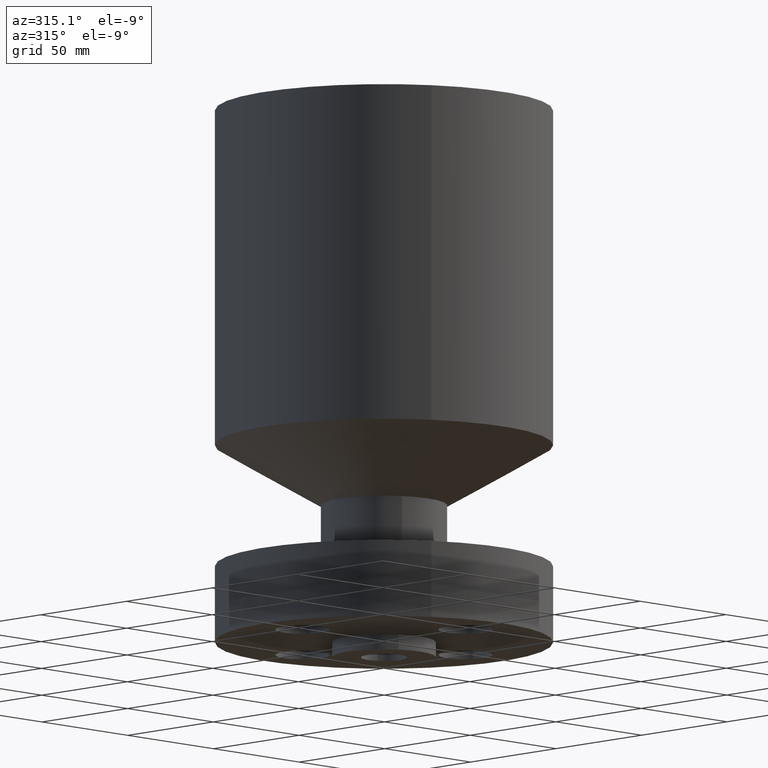
[diagram: clean part render]
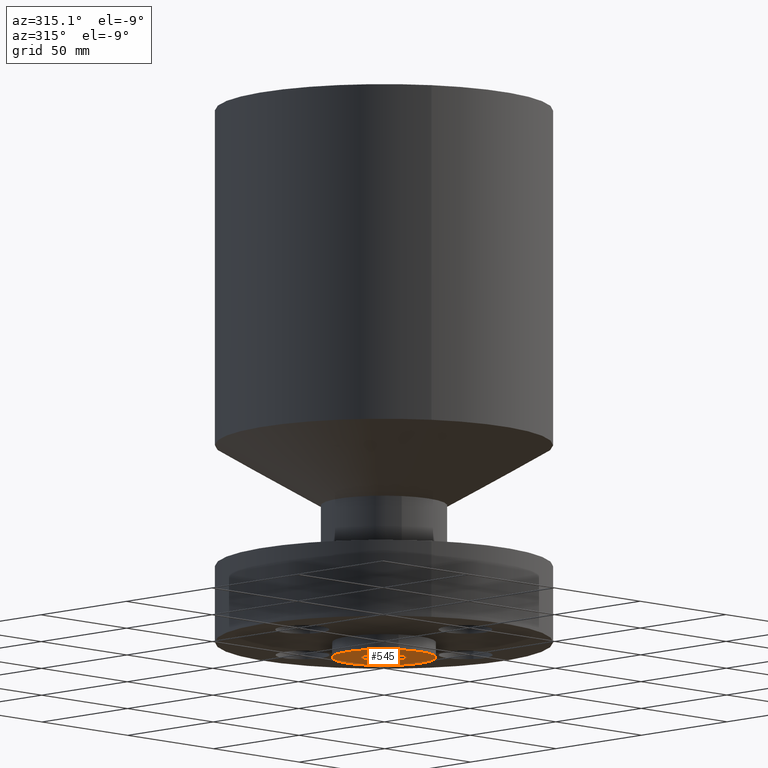
[diagram: same view with one face highlighted and labeled with its STEP entity id]
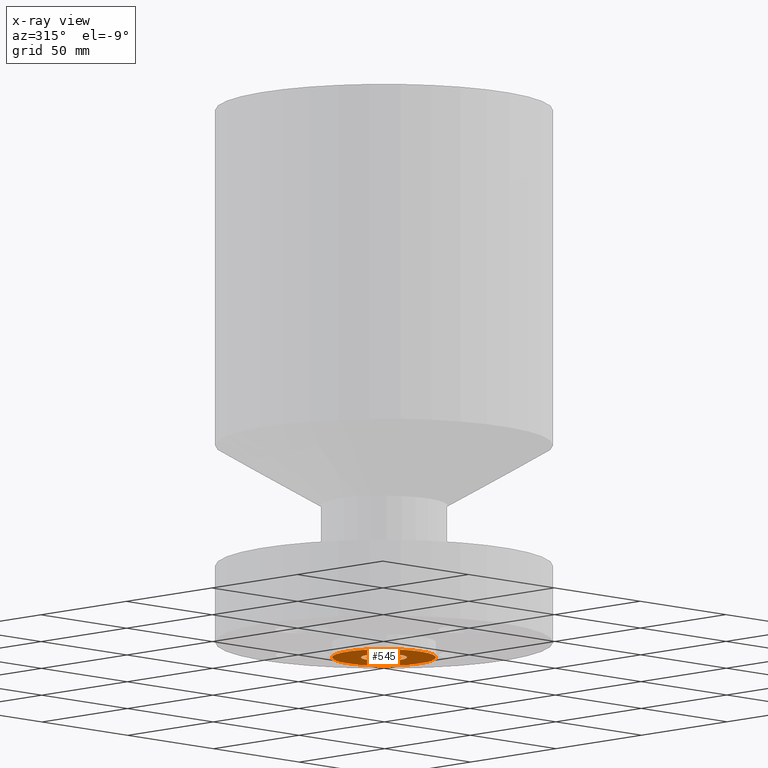
[diagram: x-ray of the same camera — body ghosted, the highlighted face saturated]
A machine part, auxiliary view. The second image highlights one B-rep face of the part: STEP entity #545.
The next image is the same camera in x-ray: the body ghosted, the highlighted face saturated — about 0% of this face is hidden behind the body in this view.
In plain terms, the highlighted planar face has unit normal (0, 0, -1).
Its self-contained STEP definition (entity closure, byte-faithful):
#489=AXIS2_PLACEMENT_3D('Circle Axis2P3D',#487,#488,$) ;
#508=AXIS2_PLACEMENT_3D('Circle Axis2P3D',#506,#507,$) ;
#521=AXIS2_PLACEMENT_3D('Plane Axis2P3D',#518,#519,#520) ;
#525=AXIS2_PLACEMENT_3D('Circle Axis2P3D',#523,#524,$) ;
#534=AXIS2_PLACEMENT_3D('Circle Axis2P3D',#532,#533,$) ;
#484=CARTESIAN_POINT('Vertex',(0.179784576977,0.32909346071,-0.250000000001)) ;
#487=CARTESIAN_POINT('Axis2P3D Location',(0.,0.,-0.250000000001)) ;
#491=CARTESIAN_POINT('Vertex',(-0.179784576977,-0.32909346071,-0.250000000001)) ;
#506=CARTESIAN_POINT('Axis2P3D Location',(0.,0.,-0.250000000001)) ;
#518=CARTESIAN_POINT('Axis2P3D Location',(0.,0.375000000001,-0.250000000001)) ;
#523=CARTESIAN_POINT('Axis2P3D Location',(0.,0.,-0.250000000001)) ;
#527=CARTESIAN_POINT('Vertex',(-0.405114580122,-0.7415572648,-0.250000000001)) ;
#529=CARTESIAN_POINT('Vertex',(0.405114580122,0.7415572648,-0.250000000001)) ;
#532=CARTESIAN_POINT('Axis2P3D Location',(0.,0.,-0.250000000001)) ;
#488=DIRECTION('Axis2P3D Direction',(0.,0.,-0.0393700787402)) ;
#507=DIRECTION('Axis2P3D Direction',(0.,0.,-0.0393700787402)) ;
#519=DIRECTION('Axis2P3D Direction',(0.,0.,-0.0393700787402)) ;
#520=DIRECTION('Axis2P3D XDirection',(0.0393700787402,0.,0.)) ;
#524=DIRECTION('Axis2P3D Direction',(0.,0.,-0.0393700787402)) ;
#533=DIRECTION('Axis2P3D Direction',(0.,0.,-0.0393700787402)) ;
#538=ORIENTED_EDGE('',*,*,#531,.T.) ;
#539=ORIENTED_EDGE('',*,*,#536,.T.) ;
#542=ORIENTED_EDGE('',*,*,#493,.F.) ;
#543=ORIENTED_EDGE('',*,*,#510,.F.) ;
#544=FACE_BOUND('',#541,.T.) ;
#545=ADVANCED_FACE('PartBody',(#540,#544),#522,.T.) ;
#490=CIRCLE('generated circle',#489,0.375000000001) ;
#509=CIRCLE('generated circle',#508,0.375000000001) ;
#526=CIRCLE('generated circle',#525,0.845000000003) ;
#535=CIRCLE('generated circle',#534,0.845000000003) ;
#493=EDGE_CURVE('',#485,#492,#490,.T.) ;
#510=EDGE_CURVE('',#492,#485,#509,.T.) ;
#531=EDGE_CURVE('',#528,#530,#526,.T.) ;
#536=EDGE_CURVE('',#530,#528,#535,.T.) ;
#537=EDGE_LOOP('',(#538,#539)) ;
#541=EDGE_LOOP('',(#542,#543)) ;
#540=FACE_OUTER_BOUND('',#537,.T.) ;
#522=PLANE('',#521) ;
#485=VERTEX_POINT('',#484) ;
#492=VERTEX_POINT('',#491) ;
#528=VERTEX_POINT('',#527) ;
#530=VERTEX_POINT('',#529) ;